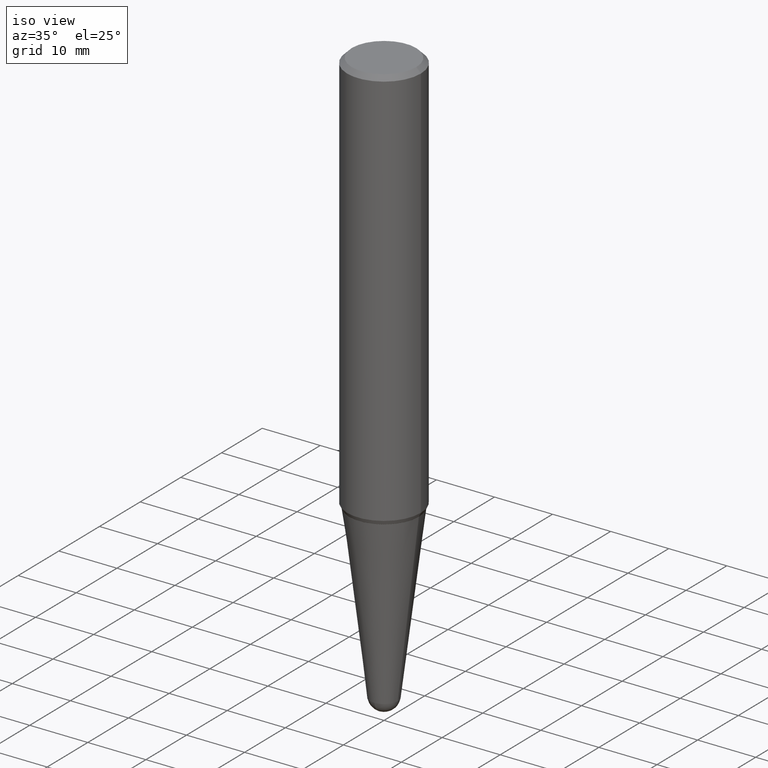
[diagram: clean part render]
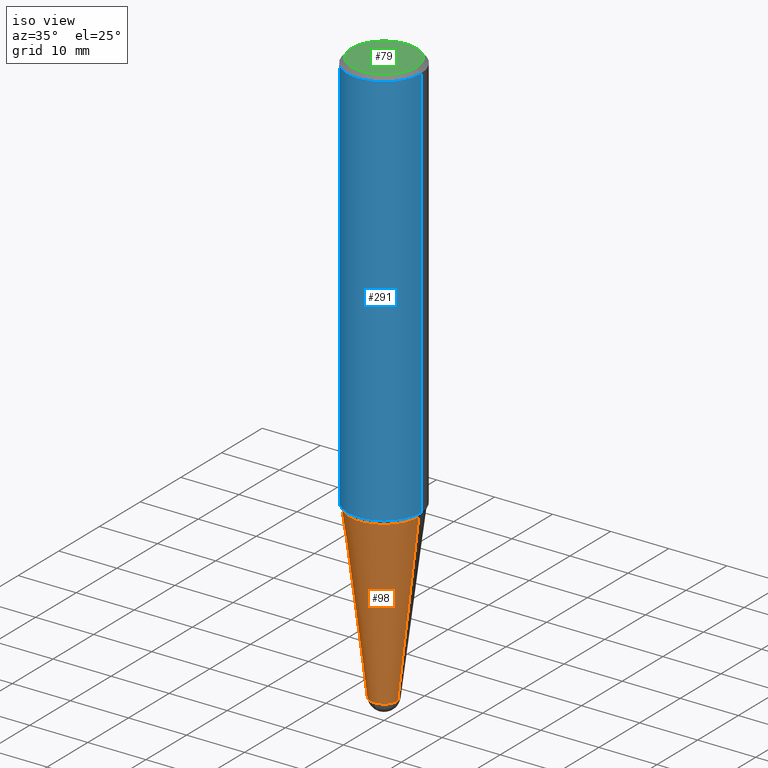
[diagram: same view with three faces highlighted in distinct colors, each labeled with its STEP entity id]
A machine part, iso view with three faces highlighted in distinct colors.
Their STEP definitions:

[orange] entity #98 — the highlighted conical surface has half-angle 7 deg.
#1 = DIRECTION ( 'NONE',  ( 1.000000000000000000, -6.982962677686275388E-15, 0.000000000000000000 ) ) ;
#8 = DIRECTION ( 'NONE',  ( -2.445468806185136597E-29, 3.491481338843145583E-15, 1.000000000000000000 ) ) ;
#11 = CARTESIAN_POINT ( 'NONE',  ( 0.2364679309439789157, -1.125282041807015082E-14, -2.750000000000000000 ) ) ;
#46 = FACE_OUTER_BOUND ( 'NONE', #240, .T. ) ;
#49 = CARTESIAN_POINT ( 'NONE',  ( 6.725039217009124520E-29, -9.601573681818649859E-15, -2.750000000000000000 ) ) ;
#50 = CARTESIAN_POINT ( 'NONE',  ( -0.09310082902395643012, -1.046909176500562336E-14, -3.917631344411403038 ) ) ;
#53 = CIRCLE ( 'NONE', #146, 0.09310082902395643012 ) ;
#64 = CARTESIAN_POINT ( 'NONE',  ( -0.2364679309439789157, -7.921367976093998557E-15, -2.750000000000000000 ) ) ;
#77 = VERTEX_POINT ( 'NONE', #318 ) ;
#83 = DIRECTION ( 'NONE',  ( 1.000000000000000000, -6.982962677686275388E-15, 0.000000000000000000 ) ) ;
#95 = VERTEX_POINT ( 'NONE', #185 ) ;
#96 = CARTESIAN_POINT ( 'NONE',  ( -0.09310082902395643012, -1.301681555391724342E-14, -3.917631344411403038 ) ) ;
#98 = ADVANCED_FACE ( 'NONE', ( #46 ), #418, .T. ) ;
#109 = CIRCLE ( 'NONE', #129, 0.2364679309439789157 ) ;
#117 = VECTOR ( 'NONE', #269, 39.37007874015748143 ) ;
#129 = AXIS2_PLACEMENT_3D ( 'NONE', #49, #256, #399 ) ;
#133 = LINE ( 'NONE', #96, #117 ) ;
#146 = AXIS2_PLACEMENT_3D ( 'NONE', #461, #147, #1 ) ;
#147 = DIRECTION ( 'NONE',  ( -2.445468806185136597E-29, 3.491481338843145583E-15, 1.000000000000000000 ) ) ;
#164 = CARTESIAN_POINT ( 'NONE',  ( 0.09310082902395643012, -1.432845634581533822E-14, -3.917631344411403038 ) ) ;
#166 = DIRECTION ( 'NONE',  ( 1.000000000000000000, -6.982962677686275388E-15, 0.000000000000000000 ) ) ;
#183 = VECTOR ( 'NONE', #305, 39.37007874015748143 ) ;
#185 = CARTESIAN_POINT ( 'NONE',  ( 0.09310082902395643012, -1.279063838194274531E-14, -3.917631344411403038 ) ) ;
#186 = EDGE_CURVE ( 'NONE', #377, #213, #109, .T. ) ;
#208 = ORIENTED_EDGE ( 'NONE', *, *, #339, .T. ) ;
#213 = VERTEX_POINT ( 'NONE', #11 ) ;
#240 = EDGE_LOOP ( 'NONE', ( #271, #388, #347, #208, #386 ) ) ;
#256 = DIRECTION ( 'NONE',  ( -2.445468806185136597E-29, 3.491481338843145583E-15, 1.000000000000000000 ) ) ;
#262 = CARTESIAN_POINT ( 'NONE',  ( 9.580445246891225390E-29, -1.367833673147939771E-14, -3.917631344411403038 ) ) ;
#267 = EDGE_CURVE ( 'NONE', #77, #95, #435, .T. ) ;
#269 = DIRECTION ( 'NONE',  ( -0.1218693434051476565, 4.331390133080061984E-15, 0.9925461516413219831 ) ) ;
#271 = ORIENTED_EDGE ( 'NONE', *, *, #284, .F. ) ;
#284 = EDGE_CURVE ( 'NONE', #391, #377, #133, .T. ) ;
#305 = DIRECTION ( 'NONE',  ( 0.1218693434051476565, 2.614447289843977717E-15, 0.9925461516413219831 ) ) ;
#318 = CARTESIAN_POINT ( 'NONE',  ( -6.615211775620541004E-16, -0.09310082902396964177, -3.917631344411402150 ) ) ;
#333 = LINE ( 'NONE', #164, #183 ) ;
#339 = EDGE_CURVE ( 'NONE', #95, #213, #333, .T. ) ;
#347 = ORIENTED_EDGE ( 'NONE', *, *, #267, .T. ) ;
#377 = VERTEX_POINT ( 'NONE', #64 ) ;
#386 = ORIENTED_EDGE ( 'NONE', *, *, #186, .F. ) ;
#388 = ORIENTED_EDGE ( 'NONE', *, *, #424, .T. ) ;
#391 = VERTEX_POINT ( 'NONE', #50 ) ;
#399 = DIRECTION ( 'NONE',  ( 1.000000000000000000, -6.982962677686267499E-15, 0.000000000000000000 ) ) ;
#418 = CONICAL_SURFACE ( 'NONE', #434, 0.09310082902395643012, 0.1221730476396032522 ) ;
#424 = EDGE_CURVE ( 'NONE', #391, #77, #53, .T. ) ;
#434 = AXIS2_PLACEMENT_3D ( 'NONE', #438, #8, #83 ) ;
#435 = CIRCLE ( 'NONE', #445, 0.09310082902395643012 ) ;
#438 = CARTESIAN_POINT ( 'NONE',  ( 9.580445246891225390E-29, -1.367833673147939771E-14, -3.917631344411403038 ) ) ;
#441 = DIRECTION ( 'NONE',  ( -2.445468806185136597E-29, 3.491481338843145583E-15, 1.000000000000000000 ) ) ;
#445 = AXIS2_PLACEMENT_3D ( 'NONE', #262, #441, #166 ) ;
#461 = CARTESIAN_POINT ( 'NONE',  ( 9.580445246891225390E-29, -1.367833673147939771E-14, -3.917631344411403038 ) ) ;

[blue] entity #291 — the highlighted cylindrical surface (partial cylindrical patch) has radius 6.35 mm, axis along (-0, 0, 1).
#2 = CIRCLE ( 'NONE', #331, 0.2500000000000003331 ) ;
#9 = VECTOR ( 'NONE', #112, 39.37007874015748143 ) ;
#24 = CARTESIAN_POINT ( 'NONE',  ( -0.2500000000000001665, 1.776356839400254015E-15, 5.931196827434174486E-16 ) ) ;
#28 = ORIENTED_EDGE ( 'NONE', *, *, #352, .F. ) ;
#34 = DIRECTION ( 'NONE',  ( 1.000000000000000000, -6.982962677686266711E-15, 0.000000000000000000 ) ) ;
#40 = CARTESIAN_POINT ( 'NONE',  ( 7.642090019328565002E-31, -1.091087918388484967E-16, -0.03125000000000005551 ) ) ;
#58 = CARTESIAN_POINT ( 'NONE',  ( 0.2500000000000003331, -1.125173466965008602E-14, -2.722624891181058437 ) ) ;
#68 = EDGE_CURVE ( 'NONE', #384, #243, #145, .T. ) ;
#71 = LINE ( 'NONE', #143, #9 ) ;
#73 = EDGE_CURVE ( 'NONE', #162, #242, #2, .T. ) ;
#112 = DIRECTION ( 'NONE',  ( -2.445468806185136877E-29, 3.491481338843145188E-15, 1.000000000000000000 ) ) ;
#140 = EDGE_LOOP ( 'NONE', ( #28, #281, #460, #201 ) ) ;
#143 = CARTESIAN_POINT ( 'NONE',  ( 0.2500000000000001665, -1.745740669421565692E-15, 5.931196827434418047E-16 ) ) ;
#145 = CIRCLE ( 'NONE', #403, 0.2500000000000000000 ) ;
#162 = VERTEX_POINT ( 'NONE', #188 ) ;
#175 = DIRECTION ( 'NONE',  ( 1.000000000000000000, -6.982962677686269077E-15, 0.000000000000000000 ) ) ;
#188 = CARTESIAN_POINT ( 'NONE',  ( -0.2500000000000003331, -7.729637160828264142E-15, -2.722624891181058437 ) ) ;
#190 = AXIS2_PLACEMENT_3D ( 'NONE', #204, #414, #272 ) ;
#201 = ORIENTED_EDGE ( 'NONE', *, *, #68, .F. ) ;
#204 = CARTESIAN_POINT ( 'NONE',  ( -1.450455682483482035E-44, 2.070866303999251778E-30, 5.931196827434296760E-16 ) ) ;
#234 = VECTOR ( 'NONE', #303, 39.37007874015748143 ) ;
#242 = VERTEX_POINT ( 'NONE', #58 ) ;
#243 = VERTEX_POINT ( 'NONE', #412 ) ;
#245 = CARTESIAN_POINT ( 'NONE',  ( 6.658094242326480624E-29, -9.505994000228516185E-15, -2.722624891181058437 ) ) ;
#272 = DIRECTION ( 'NONE',  ( 1.000000000000000000, -6.982962677686266711E-15, 4.852736867747362844E-29 ) ) ;
#281 = ORIENTED_EDGE ( 'NONE', *, *, #73, .T. ) ;
#291 = ADVANCED_FACE ( 'NONE', ( #450 ), #307, .T. ) ;
#303 = DIRECTION ( 'NONE',  ( -2.445468806185136877E-29, 3.491481338843145188E-15, 1.000000000000000000 ) ) ;
#307 = CYLINDRICAL_SURFACE ( 'NONE', #190, 0.2500000000000001665 ) ;
#331 = AXIS2_PLACEMENT_3D ( 'NONE', #245, #429, #175 ) ;
#352 = EDGE_CURVE ( 'NONE', #162, #384, #442, .T. ) ;
#370 = CARTESIAN_POINT ( 'NONE',  ( -0.2500000000000000000, -3.031194556633429811E-15, -0.03125000000000005551 ) ) ;
#384 = VERTEX_POINT ( 'NONE', #370 ) ;
#403 = AXIS2_PLACEMENT_3D ( 'NONE', #40, #421, #34 ) ;
#412 = CARTESIAN_POINT ( 'NONE',  ( 0.2500000000000000000, -1.854849461260415384E-15, -0.03125000000000005551 ) ) ;
#414 = DIRECTION ( 'NONE',  ( -2.445468806185136597E-29, 3.491481338843145583E-15, 1.000000000000000000 ) ) ;
#421 = DIRECTION ( 'NONE',  ( -2.445468806185136597E-29, 3.491481338843145583E-15, 1.000000000000000000 ) ) ;
#429 = DIRECTION ( 'NONE',  ( -2.445468806185136597E-29, 3.491481338843145583E-15, 1.000000000000000000 ) ) ;
#442 = LINE ( 'NONE', #24, #234 ) ;
#450 = FACE_OUTER_BOUND ( 'NONE', #140, .T. ) ;
#459 = EDGE_CURVE ( 'NONE', #242, #243, #71, .T. ) ;
#460 = ORIENTED_EDGE ( 'NONE', *, *, #459, .T. ) ;

[green] entity #79 — the highlighted planar face has unit normal (0, -0, -1).
#3 = DIRECTION ( 'NONE',  ( 2.438088387897960049E-29, -3.491481338843145188E-15, -1.000000000000000000 ) ) ;
#14 = DIRECTION ( 'NONE',  ( 1.000000000000000000, -6.982962677686266711E-15, 4.880466792705914597E-29 ) ) ;
#15 = EDGE_CURVE ( 'NONE', #290, #20, #51, .T. ) ;
#20 = VERTEX_POINT ( 'NONE', #423 ) ;
#51 = CIRCLE ( 'NONE', #101, 0.2187500000000003331 ) ;
#75 = PLANE ( 'NONE',  #356 ) ;
#79 = ADVANCED_FACE ( 'NONE', ( #426 ), #75, .F. ) ;
#101 = AXIS2_PLACEMENT_3D ( 'NONE', #288, #283, #149 ) ;
#113 = DIRECTION ( 'NONE',  ( -1.000000000000000000, 6.982962677686265922E-15, -4.876176775795935793E-29 ) ) ;
#120 = EDGE_CURVE ( 'NONE', #20, #290, #293, .T. ) ;
#136 = AXIS2_PLACEMENT_3D ( 'NONE', #299, #157, #14 ) ;
#149 = DIRECTION ( 'NONE',  ( 1.000000000000000000, -6.982962677686266711E-15, 4.880466792705914597E-29 ) ) ;
#157 = DIRECTION ( 'NONE',  ( -2.445468806185136597E-29, 3.491481338843145583E-15, 1.000000000000000000 ) ) ;
#169 = ORIENTED_EDGE ( 'NONE', *, *, #15, .T. ) ;
#283 = DIRECTION ( 'NONE',  ( -2.445468806185136597E-29, 3.491481338843145583E-15, 1.000000000000000000 ) ) ;
#288 = CARTESIAN_POINT ( 'NONE',  ( 1.366947569336664402E-44, -1.951638850368815849E-30, -5.589715828226263611E-16 ) ) ;
#290 = VERTEX_POINT ( 'NONE', #340 ) ;
#293 = CIRCLE ( 'NONE', #136, 0.2187500000000003331 ) ;
#299 = CARTESIAN_POINT ( 'NONE',  ( 1.366947569336664402E-44, -1.951638850368815849E-30, -5.589715828226263611E-16 ) ) ;
#321 = ORIENTED_EDGE ( 'NONE', *, *, #120, .T. ) ;
#323 = CARTESIAN_POINT ( 'NONE',  ( 6.834737846683322012E-45, -9.758194251844079245E-31, -2.794857914113131805E-16 ) ) ;
#340 = CARTESIAN_POINT ( 'NONE',  ( 0.2187500000000003331, -1.662483614147129232E-15, -5.589715828226152184E-16 ) ) ;
#356 = AXIS2_PLACEMENT_3D ( 'NONE', #323, #3, #113 ) ;
#415 = EDGE_LOOP ( 'NONE', ( #321, #169 ) ) ;
#423 = CARTESIAN_POINT ( 'NONE',  ( -0.2187500000000003331, 1.582077481663294604E-15, -5.589715828226373065E-16 ) ) ;
#426 = FACE_OUTER_BOUND ( 'NONE', #415, .T. ) ;